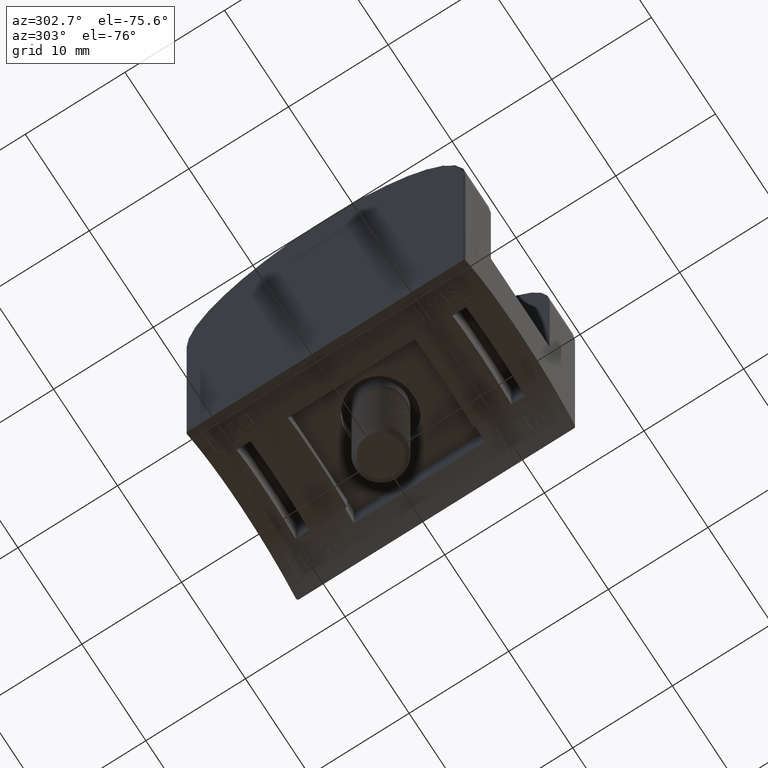
[diagram: clean part render]
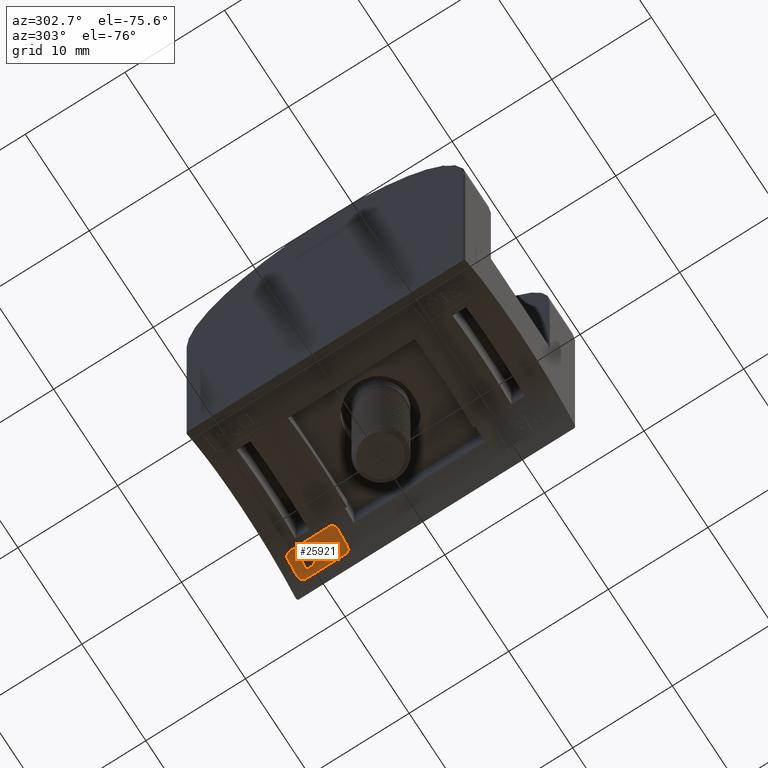
[diagram: same view with one face highlighted and labeled with its STEP entity id]
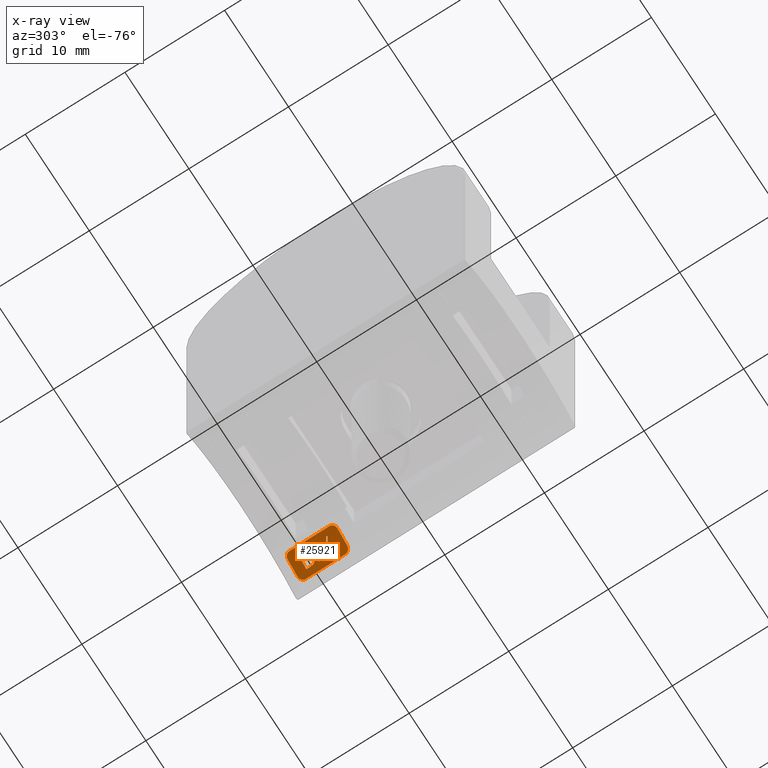
[diagram: x-ray of the same camera — body ghosted, the highlighted face saturated]
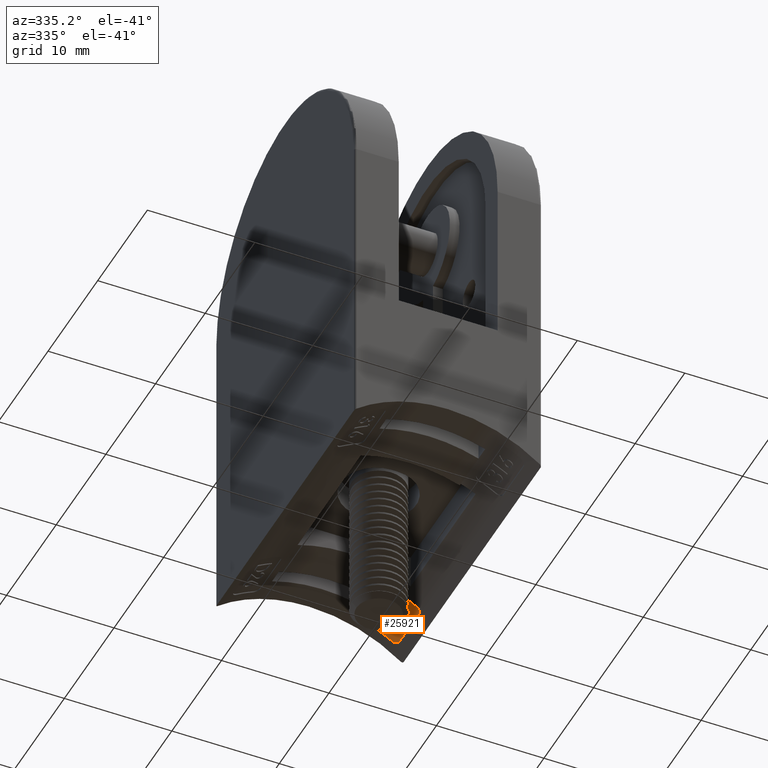
[diagram: same view with one face highlighted and labeled with its STEP entity id]
A machine part, auxiliary view. The second image highlights one B-rep face of the part: STEP entity #25921.
The next image is the same camera in x-ray: the body ghosted, the highlighted face saturated — about 0% of this face is hidden behind the body in this view.
A second angle (auxiliary view) of the same face is appended — the face is thin or edge-on in the first view.
In plain terms, the highlighted cylindrical surface (partial cylindrical patch) has radius 13.55 mm, axis along (0, -1, -0).
Its self-contained STEP definition (entity closure, byte-faithful):
#326 = CARTESIAN_POINT ( 'NONE',  ( 2.781243661305645300, -10.47598557625062900, -1.261023466747191100 ) ) ;
#383 = EDGE_CURVE ( 'NONE', #48623, #30156, #3652, .T. ) ;
#510 = CARTESIAN_POINT ( 'NONE',  ( 2.813724712160711000, -10.39809022839130900, -1.245304642851802900 ) ) ;
#591 = CIRCLE ( 'NONE', #56437, 13.54999999999999900 ) ;
#822 = B_SPLINE_CURVE_WITH_KNOTS ( 'NONE', 3,
 ( #14828, #28819, #1814, #33375, #5762, #37874, #1445, #42430, #15396, #23686, #23878, #51566, #55551 ),
 .UNSPECIFIED., .F., .F.,
 ( 4, 3, 3, 3, 4 ),
 ( 0.0000000000000000000, 0.3589622735728972300, 0.6189051195012943400, 0.8827714925391630900, 1.000000000000000000 ),
 .UNSPECIFIED. ) ;
#894 = VERTEX_POINT ( 'NONE', #43603 ) ;
#1143 = ORIENTED_EDGE ( 'NONE', *, *, #28653, .F. ) ;
#1445 = CARTESIAN_POINT ( 'NONE',  ( 2.694502168837472000, -11.08426151152798900, -1.303539783134259000 ) ) ;
#1470 = CARTESIAN_POINT ( 'NONE',  ( 1.499999999999997800, -7.999999999999991100, -1.971215221113344700 ) ) ;
#1630 = CARTESIAN_POINT ( 'NONE',  ( 2.103331426047863100, -9.685772425524541900, -1.613957722824977300 ) ) ;
#1814 = CARTESIAN_POINT ( 'NONE',  ( 2.427830635483355000, -10.95378018562484200, -1.438671370838425300 ) ) ;
#1834 = CARTESIAN_POINT ( 'NONE',  ( 1.599999999999994500, -10.78832799145298600, -1.909094489599185900 ) ) ;
#2165 = VERTEX_POINT ( 'NONE', #52874 ) ;
#2173 = B_SPLINE_CURVE_WITH_KNOTS ( 'NONE', 3,
 ( #25566, #35569, #26505, #9229 ),
 .UNSPECIFIED., .F., .F.,
 ( 4, 4 ),
 ( 0.0000000000000000000, 1.000000000000000000 ),
 .UNSPECIFIED. ) ;
#2442 = CARTESIAN_POINT ( 'NONE',  ( 0.9999999999999976700, -8.427237613736455300, -2.300448439511124200 ) ) ;
#2528 = ORIENTED_EDGE ( 'NONE', *, *, #25929, .T. ) ;
#2713 = CARTESIAN_POINT ( 'NONE',  ( 2.362292997838532700, -9.248448651265039900, -1.473524141314821000 ) ) ;
#2741 = CARTESIAN_POINT ( 'NONE',  ( 2.861262551544494000, -10.03872306440456800, -1.222504548845533300 ) ) ;
#2816 = LINE ( 'NONE', #52912, #19045 ) ;
#3061 = CARTESIAN_POINT ( 'NONE',  ( 2.816469206997823900, -10.24556987448468900, -1.243989423888562300 ) ) ;
#3507 = CARTESIAN_POINT ( 'NONE',  ( 1.735683760683757400, -13.99999999999999800, -1.826713058742978100 ) ) ;
#3652 = B_SPLINE_CURVE_WITH_KNOTS ( 'NONE', 3,
 ( #14864, #28278, #15236, #42070, #23718, #6173, #10156, #36971, #37722, #24109 ),
 .UNSPECIFIED., .F., .F.,
 ( 4, 3, 3, 4 ),
 ( 0.0000000000000000000, 0.2497992447555781300, 0.4997367509236069800, 1.000000000000000000 ),
 .UNSPECIFIED. ) ;
#3714 = B_SPLINE_CURVE_WITH_KNOTS ( 'NONE', 3,
 ( #28631, #32445, #36952, #37703, #50447, #24082, #28252, #10321 ),
 .UNSPECIFIED., .F., .F.,
 ( 4, 2, 2, 4 ),
 ( 0.0000000000000000000, 0.0003074923779592172300, 0.0004612385669388256800, 0.0006149847559184341400 ),
 .UNSPECIFIED. ) ;
#3718 = CARTESIAN_POINT ( 'NONE',  ( 2.895265210293458000, -11.40716732890070000, -1.206324075169193700 ) ) ;
#4419 = CARTESIAN_POINT ( 'NONE',  ( 2.515865384615381100, -10.61872329059828400, -1.393508841341869300 ) ) ;
#4457 = CARTESIAN_POINT ( 'NONE',  ( 1.568754213017650800, -9.360198586179942400, -1.928373421649728100 ) ) ;
#4468 = CARTESIAN_POINT ( 'NONE',  ( 2.936262573699222100, -10.44333454634084300, -1.186973013130741000 ) ) ;
#4778 = CARTESIAN_POINT ( 'NONE',  ( 2.956837606837607400, -9.160122863247856600, -1.177323611951417000 ) ) ;
#4877 = CARTESIAN_POINT ( 'NONE',  ( 2.922661614391198500, -11.72389043889028100, -1.193374801452290700 ) ) ;
#4928 = ORIENTED_EDGE ( 'NONE', *, *, #51130, .F. ) ;
#5259 = CARTESIAN_POINT ( 'NONE',  ( 2.921142371366460800, -11.65305624672311600, -1.194091037055474900 ) ) ;
#5373 = EDGE_CURVE ( 'NONE', #45609, #30156, #2173, .T. ) ;
#5446 = CARTESIAN_POINT ( 'NONE',  ( 2.749762486882848700, -9.295567081304302100, -1.274227172664701900 ) ) ;
#5660 = CARTESIAN_POINT ( 'NONE',  ( 2.353150874732899700, -9.554983807425207600, -1.478366603462324200 ) ) ;
#5762 = CARTESIAN_POINT ( 'NONE',  ( 2.578456810707535900, -11.00753625700164000, -1.361398889560031500 ) ) ;
#5777 = ORIENTED_EDGE ( 'NONE', *, *, #46509, .F. ) ;
#5795 = FACE_OUTER_BOUND ( 'NONE', #57582, .T. ) ;
#5897 = CARTESIAN_POINT ( 'NONE',  ( 1.928953424704340300, -11.00265887225300300, -1.712791854915297400 ) ) ;
#6014 = CARTESIAN_POINT ( 'NONE',  ( 1.599999999999996300, -13.99999999999999800, -1.909094489599185900 ) ) ;
#6030 = CARTESIAN_POINT ( 'NONE',  ( 1.074048197671058100, -12.77102925573208300, -2.249616292389963900 ) ) ;
#6173 = CARTESIAN_POINT ( 'NONE',  ( 2.360949980941287900, -9.338647162892844000, -1.474235041727347500 ) ) ;
#6483 = EDGE_LOOP ( 'NONE', ( #30090, #23880, #33606, #4928, #29417, #55782, #8322, #58584 ) ) ;
#6508 = B_SPLINE_CURVE_WITH_KNOTS ( 'NONE', 3,
 ( #10121, #23312, #50232, #14644, #40885, #18599, #326, #510, #9372, #13884 ),
 .UNSPECIFIED., .F., .F.,
 ( 4, 2, 2, 2, 4 ),
 ( 1.454609855418324100E-018, 0.0001257257363240730900, 0.0002514514726481447200, 0.0003771772089722163500, 0.0005029029452962879200 ),
 .UNSPECIFIED. ) ;
#6643 = DIRECTION ( 'NONE',  ( -0.0000000000000000000, 1.000000000000000000, -0.0000000000000000000 ) ) ;
#6649 = EDGE_CURVE ( 'NONE', #23253, #2165, #41255, .T. ) ;
#6670 = ORIENTED_EDGE ( 'NONE', *, *, #40439, .T. ) ;
#7047 = CARTESIAN_POINT ( 'NONE',  ( 3.499999999999998700, -12.49999999999999300, -0.9375062437578067800 ) ) ;
#7470 = CARTESIAN_POINT ( 'NONE',  ( 1.968890224358971700, -9.702857905982897400, -1.690124950142126700 ) ) ;
#7475 = CARTESIAN_POINT ( 'NONE',  ( 1.599999999999995600, -12.02644230769230100, -1.909094489599185300 ) ) ;
#7637 = CARTESIAN_POINT ( 'NONE',  ( 2.126466446413419300, -8.918528620344494200, -1.601322579297241900 ) ) ;
#7833 = CARTESIAN_POINT ( 'NONE',  ( 1.968890224358971700, -9.702857905982897400, -1.690124950142126700 ) ) ;
#7931 = B_SPLINE_CURVE_WITH_KNOTS ( 'NONE', 3,
 ( #40845, #45021, #45412, #54765, #18359, #49999, #9692, #22894 ),
 .UNSPECIFIED., .F., .F.,
 ( 4, 2, 2, 4 ),
 ( 0.0000000000000000000, 0.0001333739988976558600, 0.0002667479977953117200, 0.0005334959955906226800 ),
 .UNSPECIFIED. ) ;
#8017 = B_SPLINE_CURVE_WITH_KNOTS ( 'NONE', 3,
 ( #52499, #34092, #15726, #16114, #25197, #25393, #2741, #48115, #57252, #30146, #18303, #48516, #22640, #48313, #30352, #36074 ),
 .UNSPECIFIED., .F., .F.,
 ( 4, 3, 3, 3, 3, 4 ),
 ( 0.0000000000000000000, 0.2896778643918013200, 0.5554405402634039500, 0.7349108955849416000, 0.9141951681210913600, 1.000000000000000000 ),
 .UNSPECIFIED. ) ;
#8031 = CARTESIAN_POINT ( 'NONE',  ( 1.971275290464741000, -8.888755341880335300, -1.688760108590182400 ) ) ;
#8235 = DIRECTION ( 'NONE',  ( -0.0000000000000000000, 1.000000000000000000, -0.0000000000000000000 ) ) ;
#8322 = ORIENTED_EDGE ( 'NONE', *, *, #55608, .F. ) ;
#8463 = CARTESIAN_POINT ( 'NONE',  ( 2.907533579197703900, -11.47679536917408600, -1.200515163445390100 ) ) ;
#8846 = DIRECTION ( 'NONE',  ( -0.0000000000000000000, 1.000000000000000000, -0.0000000000000000000 ) ) ;
#9029 = CARTESIAN_POINT ( 'NONE',  ( 2.746324535063687600, -10.67931604134371800, -1.277978441839531700 ) ) ;
#9126 = CARTESIAN_POINT ( 'NONE',  ( 2.999999999999996400, -12.99999999999999500, -1.157217564765902700 ) ) ;
#9229 = CARTESIAN_POINT ( 'NONE',  ( 2.350500801282047200, -9.418240017361103600, -1.479771935110003400 ) ) ;
#9232 = CARTESIAN_POINT ( 'NONE',  ( 2.702677121937882900, -10.70079108251342400, -1.299398737933784800 ) ) ;
#9254 = EDGE_CURVE ( 'NONE', #18099, #15747, #29789, .T. ) ;
#9372 = CARTESIAN_POINT ( 'NONE',  ( 2.820071358507261600, -10.35525952697394400, -1.242258988066080400 ) ) ;
#9484 = B_SPLINE_CURVE_WITH_KNOTS ( 'NONE', 3,
 ( #50702, #24147, #5446, #28505 ),
 .UNSPECIFIED., .F., .F.,
 ( 4, 4 ),
 ( 0.0000000000000000000, 1.000000000000000000 ),
 .UNSPECIFIED. ) ;
#9627 = CARTESIAN_POINT ( 'NONE',  ( 2.922348987387299900, -11.68845670727662000, -1.193522098250696000 ) ) ;
#9692 = CARTESIAN_POINT ( 'NONE',  ( 2.207237544952938900, -10.21805274227283500, -1.556674447912159700 ) ) ;
#10053 = VERTEX_POINT ( 'NONE', #52257 ) ;
#10121 = CARTESIAN_POINT ( 'NONE',  ( 2.515865384615381100, -10.61872329059828400, -1.393508841341869300 ) ) ;
#10156 = CARTESIAN_POINT ( 'NONE',  ( 2.359874847522411400, -9.350078352226482500, -1.474804258346294100 ) ) ;
#10321 = CARTESIAN_POINT ( 'NONE',  ( 2.563566706730763900, -9.906383547008539700, -1.369160358764097000 ) ) ;
#10395 = CARTESIAN_POINT ( 'NONE',  ( 1.379053859599896500, -12.98903501344973900, -2.047765975287128000 ) ) ;
#10637 = CARTESIAN_POINT ( 'NONE',  ( 1.599999999999995600, -11.61647594484507800, -1.909094489599185900 ) ) ;
#10898 = CARTESIAN_POINT ( 'NONE',  ( 1.675456811764803400, -9.011130089955321100, -1.862972581678937500 ) ) ;
#11114 = CARTESIAN_POINT ( 'NONE',  ( 2.698492213324053000, -10.07071950627538600, -1.301567825992199000 ) ) ;
#11305 = CARTESIAN_POINT ( 'NONE',  ( 2.742124317169501300, -10.10668042485441000, -1.280093988587133200 ) ) ;
#11338 = DIRECTION ( 'NONE',  ( 0.0000000000000000000, -1.280238727658160300E-016, 1.000000000000000000 ) ) ;
#11471 = CARTESIAN_POINT ( 'NONE',  ( 1.377232189208857700, -7.999999999999992900, -2.048220605805465100 ) ) ;
#11489 = B_SPLINE_CURVE_WITH_KNOTS ( 'NONE', 3,
 ( #18117, #53720, #35305, #26603, #58265, #31186 ),
 .UNSPECIFIED., .F., .F.,
 ( 4, 2, 4 ),
 ( 0.0000000000000000000, 0.0004091148705710785800, 0.0008182297411421571600 ),
 .UNSPECIFIED. ) ;
#11897 = VERTEX_POINT ( 'NONE', #23972 ) ;
#11954 = CARTESIAN_POINT ( 'NONE',  ( 2.342463524844026000, -9.142291953136226100, -1.484017548608193200 ) ) ;
#12104 = CARTESIAN_POINT ( 'NONE',  ( 1.851387417757342200, -10.39662263566696700, -1.757386984115526100 ) ) ;
#12149 = CARTESIAN_POINT ( 'NONE',  ( 2.362781176809021200, -9.264861707716921300, -1.473265977957022300 ) ) ;
#12242 = B_SPLINE_CURVE_WITH_KNOTS ( 'NONE', 3,
 ( #36655, #36271, #18695, #22839, #19080, #18889 ),
 .UNSPECIFIED., .F., .F.,
 ( 4, 2, 4 ),
 ( 0.0000000000000000000, 0.0004091046476991060200, 0.0008182092953982118300 ),
 .UNSPECIFIED. ) ;
#12381 = B_SPLINE_CURVE_WITH_KNOTS ( 'NONE', 3,
 ( #47415, #24113, #28859, #29439 ),
 .UNSPECIFIED., .F., .F.,
 ( 4, 4 ),
 ( 0.0000000000000000000, 1.000000000000000000 ),
 .UNSPECIFIED. ) ;
#12424 = ORIENTED_EDGE ( 'NONE', *, *, #49291, .T. ) ;
#12528 = AXIS2_PLACEMENT_3D ( 'NONE', #23645, #46182, #41029 ) ;
#12543 = CARTESIAN_POINT ( 'NONE',  ( 2.322615120010930000, -9.102812649869322900, -1.494605314232123000 ) ) ;
#12786 = CARTESIAN_POINT ( 'NONE',  ( 2.901403856066197200, -11.44200666886710800, -1.203417506930509500 ) ) ;
#12941 = EDGE_CURVE ( 'NONE', #45519, #38856, #55361, .T. ) ;
#12957 = CARTESIAN_POINT ( 'NONE',  ( 2.922916666666663100, -13.99999999999999800, -1.193254585342727000 ) ) ;
#13345 = CARTESIAN_POINT ( 'NONE',  ( 1.654694774255761800, -9.563179471724399900, -1.875535312237557800 ) ) ;
#13348 = EDGE_CURVE ( 'NONE', #17921, #18099, #12242, .T. ) ;
#13379 = CARTESIAN_POINT ( 'NONE',  ( 1.735683760683757000, -10.50503513955661600, -1.826713058742976700 ) ) ;
#13539 = VECTOR ( 'NONE', #8235, 1000.000000000000000 ) ;
#13752 = CARTESIAN_POINT ( 'NONE',  ( 2.922219943458710800, -10.48745560566728600, -1.193573180737613500 ) ) ;
#13884 = CARTESIAN_POINT ( 'NONE',  ( 2.821153846153840100, -10.31210979233439700, -1.241737719912460400 ) ) ;
#13936 = CARTESIAN_POINT ( 'NONE',  ( 2.956837606837604300, -10.30601462339742900, -1.177323611951418800 ) ) ;
#14250 = EDGE_CURVE ( 'NONE', #25033, #36491, #7931, .T. ) ;
#14644 = CARTESIAN_POINT ( 'NONE',  ( 2.662188154401770500, -10.58328361534484300, -1.319504143084816000 ) ) ;
#14774 = CARTESIAN_POINT ( 'NONE',  ( 2.078273029917672200, -10.95177498190788700, -1.627842757814167900 ) ) ;
#14828 = CARTESIAN_POINT ( 'NONE',  ( 2.244762870592943200, -10.94097222222221300, -1.536460911923589700 ) ) ;
#14864 = CARTESIAN_POINT ( 'NONE',  ( 2.363221153846150700, -9.281231219951914500, -1.473033194713403700 ) ) ;
#15236 = CARTESIAN_POINT ( 'NONE',  ( 2.362624399715836700, -9.304207121650241800, -1.473348931709618900 ) ) ;
#15268 = ORIENTED_EDGE ( 'NONE', *, *, #41042, .F. ) ;
#15396 = CARTESIAN_POINT ( 'NONE',  ( 2.798153982953850900, -11.18444357048112500, -1.252775163893930000 ) ) ;
#15416 = CARTESIAN_POINT ( 'NONE',  ( 1.623646336010698100, -9.081222123583849300, -1.894540342646083200 ) ) ;
#15433 = CARTESIAN_POINT ( 'NONE',  ( 1.073319843291228800, -8.230344684416644800, -2.250113929594717900 ) ) ;
#15548 = EDGE_CURVE ( 'NONE', #15747, #53890, #11489, .T. ) ;
#15632 = EDGE_CURVE ( 'NONE', #10053, #47219, #35388, .T. ) ;
#15651 = CARTESIAN_POINT ( 'NONE',  ( 2.795944796218313500, -10.18341510828695100, -1.253903774074203600 ) ) ;
#15699 = B_SPLINE_CURVE_WITH_KNOTS ( 'NONE', 3,
 ( #24648, #47169, #55732, #1630, #47368, #38050 ),
 .UNSPECIFIED., .F., .F.,
 ( 4, 2, 4 ),
 ( 0.0000000000000000000, 0.0002351281098211727500, 0.0004702562196423454900 ),
 .UNSPECIFIED. ) ;
#15726 = CARTESIAN_POINT ( 'NONE',  ( 2.677973611025284300, -9.917474809233324300, -1.311585605392867200 ) ) ;
#15747 = VERTEX_POINT ( 'NONE', #7047 ) ;
#15840 = CARTESIAN_POINT ( 'NONE',  ( 2.759986953436302800, -10.12917844388715900, -1.271381646235258500 ) ) ;
#15859 = EDGE_LOOP ( 'NONE', ( #32267, #35175, #36537, #57323, #49136, #15268, #1143, #5777, #34210, #39245, #6670, #39280 ) ) ;
#15994 = CARTESIAN_POINT ( 'NONE',  ( 1.566079059829056400, -9.302166800213667500, -1.930031596423952700 ) ) ;
#16039 = CARTESIAN_POINT ( 'NONE',  ( 2.779768003592225400, -10.15409270829071700, -1.261733614530201600 ) ) ;
#16114 = CARTESIAN_POINT ( 'NONE',  ( 2.730364289031377700, -9.941893152621654300, -1.285874487727114400 ) ) ;
#16213 = CARTESIAN_POINT ( 'NONE',  ( 0.9999999999999983300, -8.499999999999994700, -2.300448439511123800 ) ) ;
#16334 = CARTESIAN_POINT ( 'NONE',  ( 8.699999999999999300, -12.99999999999999300, -13.44999999999999900 ) ) ;
#16505 = ORIENTED_EDGE ( 'NONE', *, *, #15548, .T. ) ;
#16592 = ORIENTED_EDGE ( 'NONE', *, *, #57807, .T. ) ;
#17024 = CARTESIAN_POINT ( 'NONE',  ( 2.885020616319446500, -9.068695329193373000, -1.211188179918356800 ) ) ;
#17729 = VERTEX_POINT ( 'NONE', #43489 ) ;
#17921 = VERTEX_POINT ( 'NONE', #18220 ) ;
#17986 = AXIS2_PLACEMENT_3D ( 'NONE', #21015, #52653, #11338 ) ;
#18099 = VERTEX_POINT ( 'NONE', #46798 ) ;
#18117 = CARTESIAN_POINT ( 'NONE',  ( 3.499999999999998700, -12.49999999999999300, -0.9375062437578067800 ) ) ;
#18220 = CARTESIAN_POINT ( 'NONE',  ( 2.999999999999996400, -7.999999999999991100, -1.157217564765899300 ) ) ;
#18303 = CARTESIAN_POINT ( 'NONE',  ( 2.939093308579701100, -10.17069558470064200, -1.185630874130569000 ) ) ;
#18359 = CARTESIAN_POINT ( 'NONE',  ( 2.364961539862016100, -10.08596971827227600, -1.472056180491716700 ) ) ;
#18448 = CARTESIAN_POINT ( 'NONE',  ( 1.623055050469729600, -9.518987182436484700, -1.894911744321089200 ) ) ;
#18599 = CARTESIAN_POINT ( 'NONE',  ( 2.756653218551202500, -10.51005304017020400, -1.272963115572289800 ) ) ;
#18695 = CARTESIAN_POINT ( 'NONE',  ( 3.249613391938882800, -8.047207717962541200, -1.044092171431718400 ) ) ;
#18889 = CARTESIAN_POINT ( 'NONE',  ( 3.499999999999998700, -8.499999999999994700, -0.9375062437578067800 ) ) ;
#19045 = VECTOR ( 'NONE', #34508, 1000.000000000000000 ) ;
#19065 = CARTESIAN_POINT ( 'NONE',  ( 1.016028206944038900, -12.64374664829540200, -2.289340809223643800 ) ) ;
#19080 = CARTESIAN_POINT ( 'NONE',  ( 3.500000000000012400, -8.361328783054572600, -0.9375062437577669200 ) ) ;
#19140 = DIRECTION ( 'NONE',  ( -0.0000000000000000000, 1.000000000000000000, -0.0000000000000000000 ) ) ;
#19314 = CARTESIAN_POINT ( 'NONE',  ( 1.667353029717438400, -11.24497087461925200, -1.867878530366256000 ) ) ;
#19444 = CARTESIAN_POINT ( 'NONE',  ( 1.209916256599599300, -12.91229111576841000, -2.158215241299818100 ) ) ;
#19820 = CARTESIAN_POINT ( 'NONE',  ( 1.499999999999995300, -12.99999999999999500, -1.971215221113344700 ) ) ;
#19951 = CARTESIAN_POINT ( 'NONE',  ( 1.813658978231575300, -8.916042277590419100, -1.780258067207662200 ) ) ;
#20170 = CARTESIAN_POINT ( 'NONE',  ( 2.806250950276758100, -10.21462558262319800, -1.248925369505113900 ) ) ;
#20330 = CARTESIAN_POINT ( 'NONE',  ( 1.587892972150840800, -9.165467928563963100, -1.916551529382006600 ) ) ;
#20533 = VERTEX_POINT ( 'NONE', #13379 ) ;
#20542 = CARTESIAN_POINT ( 'NONE',  ( 1.706583020929395500, -8.980770746437556800, -1.844130399172669900 ) ) ;
#20558 = CARTESIAN_POINT ( 'NONE',  ( 1.499999999999997800, -7.999999999999991100, -1.971215221113344700 ) ) ;
#20611 = FACE_BOUND ( 'NONE', #29217, .T. ) ;
#20981 = CARTESIAN_POINT ( 'NONE',  ( 1.969139014756984300, -10.28629124432971600, -1.689181740781424500 ) ) ;
#20985 = CARTESIAN_POINT ( 'NONE',  ( 2.590543979294295300, -10.02704898298663300, -1.355477562942769300 ) ) ;
#21015 = CARTESIAN_POINT ( 'NONE',  ( 8.699999999999999300, -7.999999999999989300, -13.44999999999999900 ) ) ;
#21432 = CARTESIAN_POINT ( 'NONE',  ( 2.076972882434261300, -8.898024429246218500, -1.628781137915363400 ) ) ;
#21548 = CARTESIAN_POINT ( 'NONE',  ( 2.363221153846150700, -9.281231219951914500, -1.473033194713403700 ) ) ;
#21773 = DIRECTION ( 'NONE',  ( 0.0000000000000000000, 1.280238727658160300E-016, -1.000000000000000000 ) ) ;
#21969 = DIRECTION ( 'NONE',  ( -0.0000000000000000000, -1.000000000000000000, -1.734723475976806800E-016 ) ) ;
#22417 = CARTESIAN_POINT ( 'NONE',  ( 2.563526129095620800, -10.73510516632279800, -1.369062221188739300 ) ) ;
#22572 = ORIENTED_EDGE ( 'NONE', *, *, #13348, .T. ) ;
#22640 = CARTESIAN_POINT ( 'NONE',  ( 2.953615358296491700, -10.24886206723475900, -1.178832021783988900 ) ) ;
#22839 = CARTESIAN_POINT ( 'NONE',  ( 3.440213655793871600, -8.228818080690253100, -0.9620894124931175200 ) ) ;
#22894 = CARTESIAN_POINT ( 'NONE',  ( 2.147505174946574800, -10.27527377136751400, -1.589674896207606200 ) ) ;
#23253 = VERTEX_POINT ( 'NONE', #1834 ) ;
#23312 = CARTESIAN_POINT ( 'NONE',  ( 2.553542830806156100, -10.61512287207211900, -1.374182953225544300 ) ) ;
#23623 = ORIENTED_EDGE ( 'NONE', *, *, #25179, .T. ) ;
#23645 = CARTESIAN_POINT ( 'NONE',  ( 8.699999999999999300, -12.02644230769229800, -13.44999999999999900 ) ) ;
#23686 = CARTESIAN_POINT ( 'NONE',  ( 2.833986547708160500, -11.24837919007845200, -1.235566481513304900 ) ) ;
#23718 = CARTESIAN_POINT ( 'NONE',  ( 2.361638971859954900, -9.327168015735750800, -1.473870417041881500 ) ) ;
#23878 = CARTESIAN_POINT ( 'NONE',  ( 2.850165489544525900, -11.27724708378993200, -1.227796502634438000 ) ) ;
#23880 = ORIENTED_EDGE ( 'NONE', *, *, #5373, .T. ) ;
#23972 = CARTESIAN_POINT ( 'NONE',  ( 2.563566706730763900, -9.906383547008539700, -1.369160358764097000 ) ) ;
#24082 = CARTESIAN_POINT ( 'NONE',  ( 2.472364928765257800, -9.913821332027469100, -1.415819523858707000 ) ) ;
#24109 = CARTESIAN_POINT ( 'NONE',  ( 2.350500801282047200, -9.418240017361103600, -1.479771935110003400 ) ) ;
#24113 = CARTESIAN_POINT ( 'NONE',  ( 1.777572269403916200, -10.62192919495444300, -1.799851492017095400 ) ) ;
#24137 = DIRECTION ( 'NONE',  ( -0.0000000000000000000, 1.000000000000000000, -0.0000000000000000000 ) ) ;
#24147 = CARTESIAN_POINT ( 'NONE',  ( 2.548533576181277700, -9.427187396030086900, -1.374783033309014700 ) ) ;
#24161 = CARTESIAN_POINT ( 'NONE',  ( 3.499999999999998700, -13.99999999999999600, -0.9375062437578067800 ) ) ;
#24480 = CARTESIAN_POINT ( 'NONE',  ( 1.602346391702531600, -9.122099972919873100, -1.907638820660768000 ) ) ;
#24490 = CARTESIAN_POINT ( 'NONE',  ( 2.922916666666661700, -12.02644230769230100, -1.193254585342726100 ) ) ;
#24648 = CARTESIAN_POINT ( 'NONE',  ( 2.353150874732899700, -9.554983807425207600, -1.478366603462324200 ) ) ;
#24914 = CARTESIAN_POINT ( 'NONE',  ( 2.088938551682689000, -10.17404096554486500, -1.622220558085613500 ) ) ;
#24918 = CARTESIAN_POINT ( 'NONE',  ( 2.820280040289614700, -10.27916461154265100, -1.242158498081070900 ) ) ;
#24931 = ORIENTED_EDGE ( 'NONE', *, *, #27637, .F. ) ;
#24934 = EDGE_CURVE ( 'NONE', #48328, #25033, #45241, .T. ) ;
#25033 = VERTEX_POINT ( 'NONE', #48247 ) ;
#25078 = CARTESIAN_POINT ( 'NONE',  ( 1.971275290464741000, -8.888755341880335300, -1.688760108590182400 ) ) ;
#25112 = CARTESIAN_POINT ( 'NONE',  ( 2.571692767392073500, -10.02560534843280300, -1.365017914315388000 ) ) ;
#25179 = EDGE_CURVE ( 'NONE', #26704, #50167, #33366, .T. ) ;
#25197 = CARTESIAN_POINT ( 'NONE',  ( 2.778595115386389900, -9.964372664715440900, -1.262204848418648300 ) ) ;
#25244 = VERTEX_POINT ( 'NONE', #40195 ) ;
#25393 = CARTESIAN_POINT ( 'NONE',  ( 2.823944805362296400, -9.997715233498794900, -1.240324103389336600 ) ) ;
#25517 = CARTESIAN_POINT ( 'NONE',  ( 1.735683760683757000, -10.50503513955661600, -1.826713058742976700 ) ) ;
#25541 = CARTESIAN_POINT ( 'NONE',  ( 2.147505174946574800, -10.27527377136751400, -1.589674896207606200 ) ) ;
#25566 = CARTESIAN_POINT ( 'NONE',  ( 2.885020616319446500, -9.068695329193373000, -1.211188179918356800 ) ) ;
#25760 = CARTESIAN_POINT ( 'NONE',  ( 2.363221153846150700, -9.281231219951914500, -1.473033194713403700 ) ) ;
#25921 = ADVANCED_FACE ( 'NONE', ( #39662, #5795, #20611, #52455 ), #51703, .F. ) ;
#25929 = EDGE_CURVE ( 'NONE', #38136, #37485, #26965, .T. ) ;
#26029 = CARTESIAN_POINT ( 'NONE',  ( 0.9999999999999983300, -13.99999999999999600, -2.300448439511123800 ) ) ;
#26192 = CARTESIAN_POINT ( 'NONE',  ( 2.886235168802928600, -11.37287414112176300, -1.210605102733422400 ) ) ;
#26313 = CARTESIAN_POINT ( 'NONE',  ( 8.699999999999999300, -9.889423076923066000, -13.44999999999999900 ) ) ;
#26445 = VECTOR ( 'NONE', #6643, 1000.000000000000000 ) ;
#26505 = CARTESIAN_POINT ( 'NONE',  ( 2.524088732926694800, -9.304723665432851100, -1.387693786982012100 ) ) ;
#26603 = CARTESIAN_POINT ( 'NONE',  ( 3.250885499759640600, -12.95173750356536700, -1.043542028583322300 ) ) ;
#26704 = VERTEX_POINT ( 'NONE', #49750 ) ;
#26745 = CARTESIAN_POINT ( 'NONE',  ( 1.567016469224512300, -9.331139712429768800, -1.929451090967558400 ) ) ;
#26965 = CIRCLE ( 'NONE', #12528, 13.54999999999999900 ) ;
#27072 = EDGE_CURVE ( 'NONE', #37485, #28526, #58036, .T. ) ;
#27134 = CARTESIAN_POINT ( 'NONE',  ( 1.580227125920803600, -9.415432736363209500, -1.921280222556063900 ) ) ;
#27168 = CARTESIAN_POINT ( 'NONE',  ( 2.919939013704584900, -11.61775138195646800, -1.194658439491747400 ) ) ;
#27637 = EDGE_CURVE ( 'NONE', #50919, #28526, #43749, .T. ) ;
#27824 = CARTESIAN_POINT ( 'NONE',  ( 8.699999999999999300, -13.99999999999999800, -13.44999999999999900 ) ) ;
#28252 = CARTESIAN_POINT ( 'NONE',  ( 2.517762863659910100, -9.907974575597704000, -1.392426310132266500 ) ) ;
#28278 = CARTESIAN_POINT ( 'NONE',  ( 2.362922746956622500, -9.292718467671621200, -1.473191075961290100 ) ) ;
#28378 = CARTESIAN_POINT ( 'NONE',  ( 2.244762870592943200, -10.94097222222221300, -1.536460911923589700 ) ) ;
#28505 = CARTESIAN_POINT ( 'NONE',  ( 2.956837606837607400, -9.160122863247856600, -1.177323611951417000 ) ) ;
#28512 = CARTESIAN_POINT ( 'NONE',  ( 1.264135491142248400, -12.94514171532081500, -2.122373940190788800 ) ) ;
#28526 = VERTEX_POINT ( 'NONE', #56861 ) ;
#28565 = CARTESIAN_POINT ( 'NONE',  ( 1.630428860552447300, -11.34854892239616600, -1.890429769915020300 ) ) ;
#28631 = CARTESIAN_POINT ( 'NONE',  ( 2.088938551682689000, -10.17404096554486500, -1.622220558085613500 ) ) ;
#28653 = EDGE_CURVE ( 'NONE', #11897, #894, #8017, .T. ) ;
#28819 = CARTESIAN_POINT ( 'NONE',  ( 2.335253693123160400, -10.94226638498586000, -1.487429325830732300 ) ) ;
#28859 = CARTESIAN_POINT ( 'NONE',  ( 1.960073994386109200, -10.45091112159261800, -1.693225332635643000 ) ) ;
#28920 = ORIENTED_EDGE ( 'NONE', *, *, #9254, .T. ) ;
#28947 = CARTESIAN_POINT ( 'NONE',  ( 1.599999999999996300, -13.99999999999999800, -1.909094489599185900 ) ) ;
#29217 = EDGE_LOOP ( 'NONE', ( #55640, #24931, #43065, #51692, #54487, #2528 ) ) ;
#29417 = ORIENTED_EDGE ( 'NONE', *, *, #45015, .F. ) ;
#29439 = CARTESIAN_POINT ( 'NONE',  ( 2.147505174946574800, -10.27527377136751400, -1.589674896207606200 ) ) ;
#29467 = CARTESIAN_POINT ( 'NONE',  ( 2.721232332157913700, -10.08677642639645300, -1.290333866062509700 ) ) ;
#29723 = CARTESIAN_POINT ( 'NONE',  ( 2.360516813519510000, -9.232195350578768600, -1.474464399103850000 ) ) ;
#29789 = LINE ( 'NONE', #24161, #36140 ) ;
#29835 = CARTESIAN_POINT ( 'NONE',  ( 1.573505564285008000, -9.208637813996777100, -1.925423531962656900 ) ) ;
#29877 = CARTESIAN_POINT ( 'NONE',  ( 2.608977590805167300, -10.03104243359861800, -1.346201174396257400 ) ) ;
#29965 = VERTEX_POINT ( 'NONE', #4419 ) ;
#29984 = B_SPLINE_CURVE_WITH_KNOTS ( 'NONE', 3,
 ( #15994, #51974, #29835, #20330, #24480, #15416, #52175, #10898, #20542, #38474, #37894, #19951, #47198, #42455, #38085, #25078 ),
 .UNSPECIFIED., .F., .F.,
 ( 4, 3, 3, 3, 3, 4 ),
 ( 0.0000000000000000000, 0.2009235254253934300, 0.4021937365522876300, 0.6014064202096439700, 0.8029979018848735200, 1.000000000000000000 ),
 .UNSPECIFIED. ) ;
#30044 = VERTEX_POINT ( 'NONE', #40695 ) ;
#30090 = ORIENTED_EDGE ( 'NONE', *, *, #53043, .T. ) ;
#30146 = CARTESIAN_POINT ( 'NONE',  ( 2.923531333302064300, -10.13514961712915700, -1.192964887761111400 ) ) ;
#30156 = VERTEX_POINT ( 'NONE', #52382 ) ;
#30161 = CARTESIAN_POINT ( 'NONE',  ( 2.885020616319446500, -9.068695329193373000, -1.211188179918356800 ) ) ;
#30162 = DIRECTION ( 'NONE',  ( 0.0000000000000000000, -1.000000000000000000, -1.734723475976807300E-016 ) ) ;
#30352 = CARTESIAN_POINT ( 'NONE',  ( 2.956394553301765300, -10.28693316261050200, -1.177530944755180300 ) ) ;
#30603 = EDGE_CURVE ( 'NONE', #20533, #25244, #51106, .T. ) ;
#30654 = CARTESIAN_POINT ( 'NONE',  ( 1.971275290464741000, -8.888755341880335300, -1.688760108590182400 ) ) ;
#30705 = AXIS2_PLACEMENT_3D ( 'NONE', #27824, #19140, #41617 ) ;
#31140 = CARTESIAN_POINT ( 'NONE',  ( 2.611791642688467100, -10.72936234547405300, -1.344675437727409700 ) ) ;
#31186 = CARTESIAN_POINT ( 'NONE',  ( 2.999999999999996400, -12.99999999999999500, -1.157217564765902700 ) ) ;
#31713 = CARTESIAN_POINT ( 'NONE',  ( 1.566079059829056400, -9.302166800213667500, -1.930031596423952700 ) ) ;
#31728 = CARTESIAN_POINT ( 'NONE',  ( 2.817435639112934700, -10.62653024963468700, -1.243476093394820300 ) ) ;
#32099 = CARTESIAN_POINT ( 'NONE',  ( 1.566079059829056400, -9.302166800213667500, -1.930031596423952700 ) ) ;
#32267 = ORIENTED_EDGE ( 'NONE', *, *, #48342, .T. ) ;
#32394 = B_SPLINE_CURVE_WITH_KNOTS ( 'NONE', 3,
 ( #24914, #20981, #12104, #25517 ),
 .UNSPECIFIED., .F., .F.,
 ( 4, 4 ),
 ( 0.0000000000000000000, 1.000000000000000000 ),
 .UNSPECIFIED. ) ;
#32445 = CARTESIAN_POINT ( 'NONE',  ( 2.158328149770228700, -10.10932149631468100, -1.583435687342664700 ) ) ;
#32573 = EDGE_CURVE ( 'NONE', #38136, #10053, #35207, .T. ) ;
#32944 = CARTESIAN_POINT ( 'NONE',  ( 1.600749651308616400, -11.52638204035729300, -1.908633301845209300 ) ) ;
#33080 = EDGE_CURVE ( 'NONE', #29965, #48328, #6508, .T. ) ;
#33366 = LINE ( 'NONE', #26029, #48230 ) ;
#33375 = CARTESIAN_POINT ( 'NONE',  ( 2.515116726295749200, -10.98493119454430200, -1.393892879927888500 ) ) ;
#33590 = CARTESIAN_POINT ( 'NONE',  ( 1.114057016818960500, -8.175581421686516100, -2.222388143297813200 ) ) ;
#33606 = ORIENTED_EDGE ( 'NONE', *, *, #383, .F. ) ;
#34092 = CARTESIAN_POINT ( 'NONE',  ( 2.619949551948598900, -9.908072421647336400, -1.340520828827536100 ) ) ;
#34206 = VERTEX_POINT ( 'NONE', #1470 ) ;
#34210 = ORIENTED_EDGE ( 'NONE', *, *, #57265, .T. ) ;
#34415 = CARTESIAN_POINT ( 'NONE',  ( 2.932865604968286600, -9.129647018563030500, -1.188541629543633100 ) ) ;
#34508 = DIRECTION ( 'NONE',  ( -0.0000000000000000000, 1.000000000000000000, -0.0000000000000000000 ) ) ;
#35175 = ORIENTED_EDGE ( 'NONE', *, *, #14250, .F. ) ;
#35207 = LINE ( 'NONE', #6014, #35939 ) ;
#35305 = CARTESIAN_POINT ( 'NONE',  ( 3.439574609779102700, -12.77163296661979400, -0.9623672000183526300 ) ) ;
#35388 = B_SPLINE_CURVE_WITH_KNOTS ( 'NONE', 3,
 ( #10637, #32944, #37443, #28565, #46546, #19314, #38006, #55314, #50760, #51135, #46360, #5897, #46167, #14774, #55684, #28378 ),
 .UNSPECIFIED., .F., .F.,
 ( 4, 3, 3, 3, 3, 4 ),
 ( 0.0000000000000000000, 0.2372449659959943700, 0.3830981460961716000, 0.5281584254641067400, 0.7517623733971390300, 1.000000000000000000 ),
 .UNSPECIFIED. ) ;
#35516 = CARTESIAN_POINT ( 'NONE',  ( 2.088938551682689000, -10.17404096554486500, -1.622220558085613500 ) ) ;
#35569 = CARTESIAN_POINT ( 'NONE',  ( 2.702262004605826600, -9.188208769376938500, -1.298021573137217600 ) ) ;
#35939 = VECTOR ( 'NONE', #24137, 1000.000000000000000 ) ;
#36074 = CARTESIAN_POINT ( 'NONE',  ( 2.956837606837604300, -10.30601462339742900, -1.177323611951418800 ) ) ;
#36091 = CARTESIAN_POINT ( 'NONE',  ( 2.875215344551278500, -11.33954326923075900, -1.215851737139644900 ) ) ;
#36140 = VECTOR ( 'NONE', #47658, 1000.000000000000000 ) ;
#36271 = CARTESIAN_POINT ( 'NONE',  ( 3.125432474727407200, -7.999999999999994700, -1.099056191642030100 ) ) ;
#36406 = CARTESIAN_POINT ( 'NONE',  ( 1.732364153586134900, -9.633488875954524700, -1.828614142713988100 ) ) ;
#36419 = CARTESIAN_POINT ( 'NONE',  ( 2.955813997935198500, -10.35239674294654000, -1.177802623372216100 ) ) ;
#36491 = VERTEX_POINT ( 'NONE', #25541 ) ;
#36537 = ORIENTED_EDGE ( 'NONE', *, *, #24934, .F. ) ;
#36655 = CARTESIAN_POINT ( 'NONE',  ( 2.999999999999996400, -7.999999999999991100, -1.157217564765899300 ) ) ;
#36825 = CARTESIAN_POINT ( 'NONE',  ( 2.922916666666663100, -11.75931490384614800, -1.193254585342724300 ) ) ;
#36871 = CIRCLE ( 'NONE', #50474, 13.54999999999999900 ) ;
#36952 = CARTESIAN_POINT ( 'NONE',  ( 2.228389245764527300, -10.04469600597794400, -1.545023728875569000 ) ) ;
#36971 = CARTESIAN_POINT ( 'NONE',  ( 2.357724334185036200, -9.372943351762756900, -1.475942822090484400 ) ) ;
#37389 = CARTESIAN_POINT ( 'NONE',  ( 1.438505979118863000, -12.99999999999999100, -2.009786982747778800 ) ) ;
#37443 = CARTESIAN_POINT ( 'NONE',  ( 1.606833742113311200, -11.43429695367020600, -1.904860009537167500 ) ) ;
#37485 = VERTEX_POINT ( 'NONE', #24490 ) ;
#37579 = CARTESIAN_POINT ( 'NONE',  ( 0.9999999999999970000, -12.57302276029638800, -2.300448439511123800 ) ) ;
#37703 = CARTESIAN_POINT ( 'NONE',  ( 2.344479849956456100, -9.965101775805782900, -1.482887145807328900 ) ) ;
#37722 = CARTESIAN_POINT ( 'NONE',  ( 2.354107658474640100, -9.395611288033681100, -1.477858710338505200 ) ) ;
#37874 = CARTESIAN_POINT ( 'NONE',  ( 2.639876775690810400, -11.04107072434479500, -1.330547872257472400 ) ) ;
#37894 = CARTESIAN_POINT ( 'NONE',  ( 1.775557546460368600, -8.934030497876763700, -1.802844223199361600 ) ) ;
#38006 = CARTESIAN_POINT ( 'NONE',  ( 1.696524084983825700, -11.20119983773771500, -1.850266162200702400 ) ) ;
#38050 = CARTESIAN_POINT ( 'NONE',  ( 1.968890224358971700, -9.702857905982897400, -1.690124950142126700 ) ) ;
#38085 = CARTESIAN_POINT ( 'NONE',  ( 1.931448138994048500, -8.889909663937338300, -1.711545626161928000 ) ) ;
#38125 = EDGE_CURVE ( 'NONE', #30044, #29965, #2816, .T. ) ;
#38136 = VERTEX_POINT ( 'NONE', #7475 ) ;
#38222 = VERTEX_POINT ( 'NONE', #35516 ) ;
#38333 = B_SPLINE_CURVE_WITH_KNOTS ( 'NONE', 3,
 ( #43676, #34415, #39314, #17024 ),
 .UNSPECIFIED., .F., .F.,
 ( 4, 4 ),
 ( 0.0000000000000000000, 1.000000000000000000 ),
 .UNSPECIFIED. ) ;
#38474 = CARTESIAN_POINT ( 'NONE',  ( 1.740799452378931000, -8.957584149668630100, -1.823649423056787900 ) ) ;
#38513 = CARTESIAN_POINT ( 'NONE',  ( 2.821153846153840100, -10.31210979233439700, -1.241737719912460400 ) ) ;
#38764 = CARTESIAN_POINT ( 'NONE',  ( 2.355588736488888100, -9.187100077004977500, -1.477073172733563100 ) ) ;
#38856 = VERTEX_POINT ( 'NONE', #31713 ) ;
#39160 = CARTESIAN_POINT ( 'NONE',  ( 2.271510767612123300, -9.022511892761590600, -1.521946478720242100 ) ) ;
#39174 = VERTEX_POINT ( 'NONE', #30654 ) ;
#39245 = ORIENTED_EDGE ( 'NONE', *, *, #30603, .T. ) ;
#39280 = ORIENTED_EDGE ( 'NONE', *, *, #6649, .F. ) ;
#39314 = CARTESIAN_POINT ( 'NONE',  ( 2.908926471126715100, -9.099171173878204400, -1.199829883467926600 ) ) ;
#39372 = CARTESIAN_POINT ( 'NONE',  ( 2.204934684695693200, -8.960450473004526000, -1.558067420257229600 ) ) ;
#39579 = CARTESIAN_POINT ( 'NONE',  ( 2.238218744510180000, -8.991477471242904000, -1.540009109734788800 ) ) ;
#39662 = FACE_BOUND ( 'NONE', #15859, .T. ) ;
#40195 = CARTESIAN_POINT ( 'NONE',  ( 1.735683760683763600, -9.889423076923067800, -1.826713058742973600 ) ) ;
#40439 = EDGE_CURVE ( 'NONE', #25244, #2165, #591, .T. ) ;
#40540 = CARTESIAN_POINT ( 'NONE',  ( 1.588906372750723300, -9.442034362195515800, -1.915918934379845300 ) ) ;
#40580 = CARTESIAN_POINT ( 'NONE',  ( 2.914815060236219500, -11.54729763577144300, -1.197076462626140300 ) ) ;
#40695 = CARTESIAN_POINT ( 'NONE',  ( 2.515865384615382000, -10.73744658119657600, -1.393508841341869300 ) ) ;
#40845 = CARTESIAN_POINT ( 'NONE',  ( 2.552966412927346200, -10.02510683760682900, -1.374550605488808100 ) ) ;
#40885 = CARTESIAN_POINT ( 'NONE',  ( 2.697160823592972700, -10.56347869754155900, -1.302180439623590100 ) ) ;
#40936 = CARTESIAN_POINT ( 'NONE',  ( 2.785129963680751600, -10.65051076121838800, -1.259150462192849500 ) ) ;
#41029 = DIRECTION ( 'NONE',  ( 0.0000000000000000000, -1.280238727658160300E-016, 1.000000000000000000 ) ) ;
#41042 = EDGE_CURVE ( 'NONE', #894, #30044, #51737, .T. ) ;
#41112 = CARTESIAN_POINT ( 'NONE',  ( 1.777073660135043600, -9.659491174686779800, -1.801886994165948300 ) ) ;
#41255 = LINE ( 'NONE', #28947, #26445 ) ;
#41617 = DIRECTION ( 'NONE',  ( 0.0000000000000000000, 0.0000000000000000000, 1.000000000000000000 ) ) ;
#41866 = VECTOR ( 'NONE', #8846, 1000.000000000000000 ) ;
#42070 = CARTESIAN_POINT ( 'NONE',  ( 2.362131761474740800, -9.315685805156860500, -1.473609634322509100 ) ) ;
#42264 = CARTESIAN_POINT ( 'NONE',  ( 2.821153846153840100, -10.31210979233439700, -1.241737719912460400 ) ) ;
#42430 = CARTESIAN_POINT ( 'NONE',  ( 2.749561856207602500, -11.12779568313919900, -1.276316968653158400 ) ) ;
#42455 = CARTESIAN_POINT ( 'NONE',  ( 1.891366365835204000, -8.893794976496380400, -1.734753798482370900 ) ) ;
#42652 = CARTESIAN_POINT ( 'NONE',  ( 1.257239988434287700, -8.044077662675892500, -2.126527952718253900 ) ) ;
#42692 = B_SPLINE_CURVE_WITH_KNOTS ( 'NONE', 3,
 ( #8031, #43926, #21432, #7637, #47885, #39372, #39579, #39160, #56836, #12543, #11954, #38764, #29723, #2713, #12149, #25760 ),
 .UNSPECIFIED., .F., .F.,
 ( 4, 3, 3, 3, 3, 4 ),
 ( 0.0000000000000000000, 0.2741809908198247200, 0.4967589281976226800, 0.7196573311027144600, 0.9266925270155451600, 1.000000000000000000 ),
 .UNSPECIFIED. ) ;
#43065 = ORIENTED_EDGE ( 'NONE', *, *, #51951, .F. ) ;
#43489 = CARTESIAN_POINT ( 'NONE',  ( 1.499999999999995300, -12.99999999999999500, -1.971215221113344700 ) ) ;
#43603 = CARTESIAN_POINT ( 'NONE',  ( 2.956837606837604300, -10.30601462339742900, -1.177323611951418800 ) ) ;
#43676 = CARTESIAN_POINT ( 'NONE',  ( 2.956837606837607400, -9.160122863247856600, -1.177323611951417000 ) ) ;
#43749 = B_SPLINE_CURVE_WITH_KNOTS ( 'NONE', 3,
 ( #48718, #26192, #3718, #12786, #8463, #50116, #40580, #54881, #27168, #5259, #9627, #4877, #36825 ),
 .UNSPECIFIED., .F., .F.,
 ( 4, 3, 3, 3, 4 ),
 ( 0.0000000000000000000, 0.2509475980123711500, 0.5010092069006838500, 0.7501945475834186400, 1.000000000000000000 ),
 .UNSPECIFIED. ) ;
#43926 = CARTESIAN_POINT ( 'NONE',  ( 2.023513342598768800, -8.890178323307321100, -1.658874188787719400 ) ) ;
#44125 = CARTESIAN_POINT ( 'NONE',  ( 1.919213420861234800, -9.700900010998720900, -1.718558927223394800 ) ) ;
#44739 = CARTESIAN_POINT ( 'NONE',  ( 2.899814147998533500, -10.52894293429594100, -1.204133093555754200 ) ) ;
#45015 = EDGE_CURVE ( 'NONE', #38856, #39174, #29984, .T. ) ;
#45021 = CARTESIAN_POINT ( 'NONE',  ( 2.513010673459895800, -10.02664407892117600, -1.394890160935446700 ) ) ;
#45241 = B_SPLINE_CURVE_WITH_KNOTS ( 'NONE', 3,
 ( #38513, #24918, #3061, #20170, #15651, #16039, #15840, #11305, #29467, #11114, #52011, #51826, #29877, #20985, #25112, #56588 ),
 .UNSPECIFIED., .F., .F.,
 ( 4, 3, 3, 3, 3, 4 ),
 ( 0.0000000000000000000, 0.2156440676540207200, 0.4334275670718076800, 0.6287832444564116500, 0.8639472387063383800, 1.000000000000000000 ),
 .UNSPECIFIED. ) ;
#45412 = CARTESIAN_POINT ( 'NONE',  ( 2.473711957455115400, -10.03274014817064200, -1.415149344685446400 ) ) ;
#45519 = VERTEX_POINT ( 'NONE', #7470 ) ;
#45609 = VERTEX_POINT ( 'NONE', #30161 ) ;
#45675 = B_SPLINE_CURVE_WITH_KNOTS ( 'NONE', 3,
 ( #16213, #2442, #56170, #15433, #33590, #42652, #11471, #20558 ),
 .UNSPECIFIED., .F., .F.,
 ( 4, 2, 2, 4 ),
 ( 1.748223473168675600E-018, 0.0002148613864508085300, 0.0004297227729016153300, 0.0008594455458032324900 ),
 .UNSPECIFIED. ) ;
#46167 = CARTESIAN_POINT ( 'NONE',  ( 1.999709416326645600, -10.97854723524575400, -1.672538215118818400 ) ) ;
#46182 = DIRECTION ( 'NONE',  ( -0.0000000000000000000, 1.000000000000000000, 1.734723475976806800E-016 ) ) ;
#46360 = CARTESIAN_POINT ( 'NONE',  ( 1.860500131256200000, -11.03904709781747700, -1.752625866461512200 ) ) ;
#46473 = B_SPLINE_CURVE_WITH_KNOTS ( 'NONE', 3,
 ( #19820, #37389, #10395, #28512, #19444, #51079, #6030, #19065, #37579, #46687 ),
 .UNSPECIFIED., .F., .F.,
 ( 4, 2, 2, 2, 4 ),
 ( 2.168404344971008900E-019, 0.0002140893279435758800, 0.0004281786558871515400, 0.0006422679838307271400, 0.0008563573117743028500 ),
 .UNSPECIFIED. ) ;
#46509 = EDGE_CURVE ( 'NONE', #38222, #11897, #3714, .T. ) ;
#46546 = CARTESIAN_POINT ( 'NONE',  ( 1.644955771737022700, -11.29575605179526900, -1.881545440306597200 ) ) ;
#46687 = CARTESIAN_POINT ( 'NONE',  ( 0.9999999999999983300, -12.49999999999999300, -2.300448439511123800 ) ) ;
#46798 = CARTESIAN_POINT ( 'NONE',  ( 3.499999999999998700, -8.499999999999994700, -0.9375062437578067800 ) ) ;
#47065 = EDGE_CURVE ( 'NONE', #34206, #17921, #57277, .T. ) ;
#47169 = CARTESIAN_POINT ( 'NONE',  ( 2.293092878656442800, -9.594028805455955900, -1.510206789946268600 ) ) ;
#47198 = CARTESIAN_POINT ( 'NONE',  ( 1.852914763044742500, -8.904803510063242600, -1.757270474441422300 ) ) ;
#47219 = VERTEX_POINT ( 'NONE', #50669 ) ;
#47368 = CARTESIAN_POINT ( 'NONE',  ( 2.036984480528528900, -9.700625958440088700, -1.651149203254973300 ) ) ;
#47415 = CARTESIAN_POINT ( 'NONE',  ( 1.599999999999994500, -10.78832799145298600, -1.909094489599185900 ) ) ;
#47576 = VERTEX_POINT ( 'NONE', #4778 ) ;
#47658 = DIRECTION ( 'NONE',  ( 0.0000000000000000000, -1.000000000000000000, 0.0000000000000000000 ) ) ;
#47885 = CARTESIAN_POINT ( 'NONE',  ( 2.166715206899888700, -8.935202874735040300, -1.578992949739955500 ) ) ;
#48115 = CARTESIAN_POINT ( 'NONE',  ( 2.886578130471309000, -10.06654191967101400, -1.210416135539653000 ) ) ;
#48230 = VECTOR ( 'NONE', #53137, 1000.000000000000000 ) ;
#48247 = CARTESIAN_POINT ( 'NONE',  ( 2.552966412927346200, -10.02510683760682900, -1.374550605488808100 ) ) ;
#48313 = CARTESIAN_POINT ( 'NONE',  ( 2.955838792788719100, -10.26779124249010200, -1.177790824251639300 ) ) ;
#48328 = VERTEX_POINT ( 'NONE', #42264 ) ;
#48342 = EDGE_CURVE ( 'NONE', #23253, #36491, #12381, .T. ) ;
#48516 = CARTESIAN_POINT ( 'NONE',  ( 2.949015337709369100, -10.20969986291696900, -1.180986135206630200 ) ) ;
#48530 = DIRECTION ( 'NONE',  ( 0.0000000000000000000, 1.280238727658160300E-016, -1.000000000000000000 ) ) ;
#48623 = VERTEX_POINT ( 'NONE', #21548 ) ;
#48718 = CARTESIAN_POINT ( 'NONE',  ( 2.875215344551278500, -11.33954326923075900, -1.215851737139644900 ) ) ;
#49136 = ORIENTED_EDGE ( 'NONE', *, *, #38125, .F. ) ;
#49291 = EDGE_CURVE ( 'NONE', #50167, #34206, #45675, .T. ) ;
#49505 = CARTESIAN_POINT ( 'NONE',  ( 2.657988194321133900, -10.71483974147315400, -1.321661558975305600 ) ) ;
#49664 = VERTEX_POINT ( 'NONE', #5660 ) ;
#49750 = CARTESIAN_POINT ( 'NONE',  ( 0.9999999999999983300, -12.49999999999999300, -2.300448439511123800 ) ) ;
#49901 = CARTESIAN_POINT ( 'NONE',  ( 2.950192900115240900, -10.39956633855418700, -1.180425629372182600 ) ) ;
#49981 = ORIENTED_EDGE ( 'NONE', *, *, #47065, .T. ) ;
#49999 = CARTESIAN_POINT ( 'NONE',  ( 2.267647737009943900, -10.16097399647259200, -1.523862901018483200 ) ) ;
#50116 = CARTESIAN_POINT ( 'NONE',  ( 2.911647353665114800, -11.51202754198215700, -1.198572086775988800 ) ) ;
#50167 = VERTEX_POINT ( 'NONE', #56975 ) ;
#50232 = CARTESIAN_POINT ( 'NONE',  ( 2.590638762242390800, -10.60858166380662500, -1.355381077352311400 ) ) ;
#50447 = CARTESIAN_POINT ( 'NONE',  ( 2.384820932663841200, -9.942305013600094600, -1.461528385140479700 ) ) ;
#50474 = AXIS2_PLACEMENT_3D ( 'NONE', #16334, #30162, #48530 ) ;
#50669 = CARTESIAN_POINT ( 'NONE',  ( 2.244762870592943200, -10.94097222222221300, -1.536460911923589700 ) ) ;
#50702 = CARTESIAN_POINT ( 'NONE',  ( 2.353150874732899700, -9.554983807425207600, -1.478366603462324200 ) ) ;
#50760 = CARTESIAN_POINT ( 'NONE',  ( 1.761789124668941200, -11.11977560060107000, -1.811023295003356900 ) ) ;
#50919 = VERTEX_POINT ( 'NONE', #36091 ) ;
#51079 = CARTESIAN_POINT ( 'NONE',  ( 1.115058247242467500, -12.82550328617498000, -2.221713571197064100 ) ) ;
#51106 = LINE ( 'NONE', #3507, #41866 ) ;
#51130 = EDGE_CURVE ( 'NONE', #39174, #48623, #42692, .T. ) ;
#51135 = CARTESIAN_POINT ( 'NONE',  ( 1.800746883365294000, -11.08791490299405200, -1.787975886124899100 ) ) ;
#51566 = CARTESIAN_POINT ( 'NONE',  ( 2.863285706039330400, -11.30822379351292100, -1.221531542047711700 ) ) ;
#51692 = ORIENTED_EDGE ( 'NONE', *, *, #15632, .F. ) ;
#51703 = CYLINDRICAL_SURFACE ( 'NONE', #30705, 13.54999999999999900 ) ;
#51737 = B_SPLINE_CURVE_WITH_KNOTS ( 'NONE', 3,
 ( #13936, #36419, #49901, #4468, #13752, #44739, #57151, #54080, #31728, #40936, #9029, #9232, #49505, #31140, #22417, #53882 ),
 .UNSPECIFIED., .F., .F.,
 ( 4, 3, 3, 3, 3, 4 ),
 ( 0.0000000000000000000, 0.1918318768205249100, 0.3857075183592123000, 0.5637900934969539700, 0.7785685668722266400, 1.000000000000000000 ),
 .UNSPECIFIED. ) ;
#51826 = CARTESIAN_POINT ( 'NONE',  ( 2.640434671676186600, -10.03785728367731900, -1.330370955530762100 ) ) ;
#51951 = EDGE_CURVE ( 'NONE', #47219, #50919, #822, .T. ) ;
#51974 = CARTESIAN_POINT ( 'NONE',  ( 1.567739693099575100, -9.255846894245189900, -1.929003223250739700 ) ) ;
#52011 = CARTESIAN_POINT ( 'NONE',  ( 2.671320557319424100, -10.05153345394158000, -1.314991031781466100 ) ) ;
#52175 = CARTESIAN_POINT ( 'NONE',  ( 1.649675962722490800, -9.046007826778701900, -1.878680672914391900 ) ) ;
#52257 = CARTESIAN_POINT ( 'NONE',  ( 1.599999999999995600, -11.61647594484507800, -1.909094489599185900 ) ) ;
#52382 = CARTESIAN_POINT ( 'NONE',  ( 2.350500801282047200, -9.418240017361103600, -1.479771935110003400 ) ) ;
#52455 = FACE_BOUND ( 'NONE', #6483, .T. ) ;
#52499 = CARTESIAN_POINT ( 'NONE',  ( 2.563566706730763900, -9.906383547008539700, -1.369160358764097000 ) ) ;
#52653 = DIRECTION ( 'NONE',  ( -0.0000000000000000000, 1.000000000000000000, 1.734723475976807300E-016 ) ) ;
#52725 = ORIENTED_EDGE ( 'NONE', *, *, #57540, .T. ) ;
#52874 = CARTESIAN_POINT ( 'NONE',  ( 1.599999999999995600, -9.889423076923071300, -1.909094489599185300 ) ) ;
#52912 = CARTESIAN_POINT ( 'NONE',  ( 2.515865384615381100, -13.99999999999999800, -1.393508841341869300 ) ) ;
#53043 = EDGE_CURVE ( 'NONE', #47576, #45609, #38333, .T. ) ;
#53137 = DIRECTION ( 'NONE',  ( -0.0000000000000000000, 1.000000000000000000, -0.0000000000000000000 ) ) ;
#53270 = CARTESIAN_POINT ( 'NONE',  ( 1.870607014794495800, -9.693720676005881400, -1.746802267862761000 ) ) ;
#53720 = CARTESIAN_POINT ( 'NONE',  ( 3.499999999999996400, -12.63840074870905500, -0.9375062437578067800 ) ) ;
#53882 = CARTESIAN_POINT ( 'NONE',  ( 2.515865384615382000, -10.73744658119657600, -1.393508841341869300 ) ) ;
#53890 = VERTEX_POINT ( 'NONE', #9126 ) ;
#54080 = CARTESIAN_POINT ( 'NONE',  ( 2.847373919450976800, -10.59762137147030700, -1.229114374841651300 ) ) ;
#54366 = EDGE_CURVE ( 'NONE', #49664, #47576, #9484, .T. ) ;
#54487 = ORIENTED_EDGE ( 'NONE', *, *, #32573, .F. ) ;
#54765 = CARTESIAN_POINT ( 'NONE',  ( 2.398614572643557300, -10.06323787410373100, -1.454299320991606900 ) ) ;
#54881 = CARTESIAN_POINT ( 'NONE',  ( 2.917972604672471900, -11.58245458162821100, -1.195585636500969200 ) ) ;
#55314 = CARTESIAN_POINT ( 'NONE',  ( 1.725633189709058900, -11.15752175736381500, -1.832691197403964600 ) ) ;
#55361 = B_SPLINE_CURVE_WITH_KNOTS ( 'NONE', 3,
 ( #7833, #44125, #53270, #41112, #36406, #13345, #18448, #40540, #27134, #4457, #26745, #32099 ),
 .UNSPECIFIED., .F., .F.,
 ( 4, 2, 2, 2, 2, 4 ),
 ( 9.697399036122160600E-019, 0.0001696476467397671400, 0.0003392952934795333000, 0.0005089429402192995200, 0.0005937667635891825700, 0.0006785905869590656300 ),
 .UNSPECIFIED. ) ;
#55551 = CARTESIAN_POINT ( 'NONE',  ( 2.875215344551278500, -11.33954326923075900, -1.215851737139644900 ) ) ;
#55608 = EDGE_CURVE ( 'NONE', #49664, #45519, #15699, .T. ) ;
#55640 = ORIENTED_EDGE ( 'NONE', *, *, #27072, .T. ) ;
#55684 = CARTESIAN_POINT ( 'NONE',  ( 2.161885538633850200, -10.94217716200722100, -1.581367201019833400 ) ) ;
#55732 = CARTESIAN_POINT ( 'NONE',  ( 2.232489445617477800, -9.632014130588871100, -1.542891186749283400 ) ) ;
#55782 = ORIENTED_EDGE ( 'NONE', *, *, #12941, .F. ) ;
#56170 = CARTESIAN_POINT ( 'NONE',  ( 1.016196912547245900, -8.356109354290968100, -2.289226356741880700 ) ) ;
#56437 = AXIS2_PLACEMENT_3D ( 'NONE', #26313, #21969, #21773 ) ;
#56588 = CARTESIAN_POINT ( 'NONE',  ( 2.552966412927346200, -10.02510683760682900, -1.374550605488808100 ) ) ;
#56836 = CARTESIAN_POINT ( 'NONE',  ( 2.301225556428674800, -9.060267917710167000, -1.506015182577283200 ) ) ;
#56861 = CARTESIAN_POINT ( 'NONE',  ( 2.922916666666663100, -11.75931490384614800, -1.193254585342724300 ) ) ;
#56975 = CARTESIAN_POINT ( 'NONE',  ( 0.9999999999999983300, -8.499999999999994700, -2.300448439511123800 ) ) ;
#57151 = CARTESIAN_POINT ( 'NONE',  ( 2.872547214674317400, -10.56465312128619300, -1.217122413969533800 ) ) ;
#57252 = CARTESIAN_POINT ( 'NONE',  ( 2.907962282853966900, -10.09958748876989700, -1.200302235762495100 ) ) ;
#57265 = EDGE_CURVE ( 'NONE', #38222, #20533, #32394, .T. ) ;
#57277 = CIRCLE ( 'NONE', #17986, 13.54999999999999900 ) ;
#57323 = ORIENTED_EDGE ( 'NONE', *, *, #33080, .F. ) ;
#57540 = EDGE_CURVE ( 'NONE', #53890, #17729, #36871, .T. ) ;
#57582 = EDGE_LOOP ( 'NONE', ( #28920, #16505, #52725, #16592, #23623, #12424, #49981, #22572 ) ) ;
#57807 = EDGE_CURVE ( 'NONE', #17729, #26704, #46473, .T. ) ;
#58036 = LINE ( 'NONE', #12957, #13539 ) ;
#58265 = CARTESIAN_POINT ( 'NONE',  ( 3.125273924621608600, -12.99999999999999600, -1.099129709220967300 ) ) ;
#58584 = ORIENTED_EDGE ( 'NONE', *, *, #54366, .T. ) ;